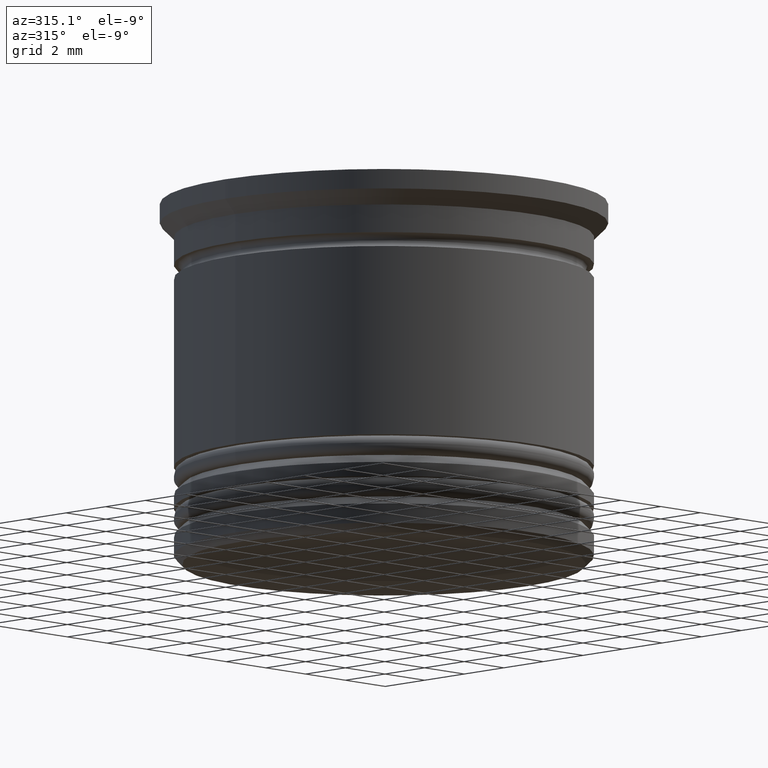
[diagram: clean part render]
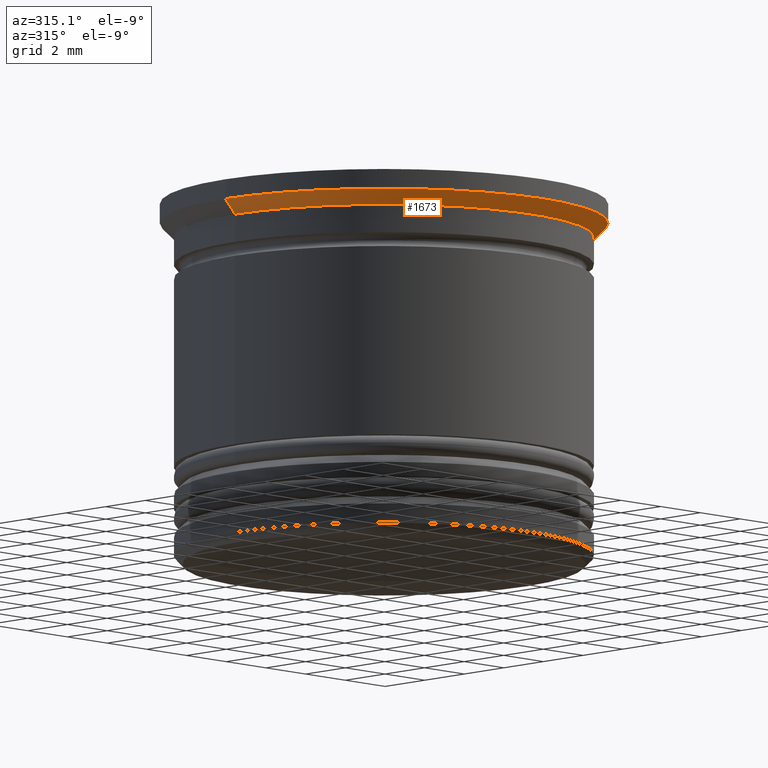
[diagram: same view with one face highlighted and labeled with its STEP entity id]
A machine part, auxiliary view. The second image highlights one B-rep face of the part: STEP entity #1673.
In plain terms, the highlighted conical surface has half-angle 45 deg.
Its self-contained STEP definition (entity closure, byte-faithful):
#14 = AXIS2_PLACEMENT_3D ( 'NONE', #1347, #422, #411 ) ;
#138 = VERTEX_POINT ( 'NONE', #867 ) ;
#160 = EDGE_CURVE ( 'NONE', #729, #1869, #1290, .T. ) ;
#173 = DIRECTION ( 'NONE',  ( -0.7071067811865500152, 8.659560562354963673E-17, 0.7071067811865450192 ) ) ;
#273 = ORIENTED_EDGE ( 'NONE', *, *, #1799, .T. ) ;
#298 = DIRECTION ( 'NONE',  ( 0.7071067811865500152, 0.000000000000000000, 0.7071067811865450192 ) ) ;
#353 = VECTOR ( 'NONE', #298, 1000.000000000000000 ) ;
#411 = DIRECTION ( 'NONE',  ( 1.000000000000000000, 0.000000000000000000, 0.000000000000000000 ) ) ;
#422 = DIRECTION ( 'NONE',  ( -0.000000000000000000, -0.000000000000000000, 1.000000000000000000 ) ) ;
#472 = CARTESIAN_POINT ( 'NONE',  ( -8.000000000000000000, 9.797174393178825657E-16, -0.7000000000000005107 ) ) ;
#498 = DIRECTION ( 'NONE',  ( -1.000000000000000000, 0.000000000000000000, 0.000000000000000000 ) ) ;
#528 = EDGE_CURVE ( 'NONE', #686, #138, #1692, .T. ) ;
#552 = EDGE_CURVE ( 'NONE', #138, #1869, #1980, .T. ) ;
#558 = EDGE_LOOP ( 'NONE', ( #1569, #273, #1346, #1042 ) ) ;
#618 = CARTESIAN_POINT ( 'NONE',  ( 0.000000000000000000, 0.000000000000000000, -0.7000000000000005107 ) ) ;
#628 = DIRECTION ( 'NONE',  ( -0.000000000000000000, -0.000000000000000000, 1.000000000000000000 ) ) ;
#676 = CARTESIAN_POINT ( 'NONE',  ( 7.499999999999998224, 0.000000000000000000, -1.199999999999999289 ) ) ;
#686 = VERTEX_POINT ( 'NONE', #1736 ) ;
#729 = VERTEX_POINT ( 'NONE', #676 ) ;
#793 = DIRECTION ( 'NONE',  ( -0.000000000000000000, -0.000000000000000000, 1.000000000000000000 ) ) ;
#867 = CARTESIAN_POINT ( 'NONE',  ( -8.000000000000000000, 9.797174393178825657E-16, -0.7000000000000005107 ) ) ;
#894 = VECTOR ( 'NONE', #173, 1000.000000000000000 ) ;
#1042 = ORIENTED_EDGE ( 'NONE', *, *, #552, .F. ) ;
#1109 = AXIS2_PLACEMENT_3D ( 'NONE', #618, #793, #498 ) ;
#1177 = CARTESIAN_POINT ( 'NONE',  ( 8.000000000000000000, 0.000000000000000000, -0.7000000000000005107 ) ) ;
#1205 = CARTESIAN_POINT ( 'NONE',  ( 8.000000000000000000, 0.000000000000000000, -0.7000000000000005107 ) ) ;
#1290 = LINE ( 'NONE', #1177, #353 ) ;
#1331 = CONICAL_SURFACE ( 'NONE', #14, 8.000000000000000000, 0.7853981633974518317 ) ;
#1346 = ORIENTED_EDGE ( 'NONE', *, *, #160, .T. ) ;
#1347 = CARTESIAN_POINT ( 'NONE',  ( 0.000000000000000000, 0.000000000000000000, -0.7000000000000005107 ) ) ;
#1355 = CARTESIAN_POINT ( 'NONE',  ( 0.000000000000000000, 0.000000000000000000, -1.199999999999999289 ) ) ;
#1569 = ORIENTED_EDGE ( 'NONE', *, *, #528, .F. ) ;
#1673 = ADVANCED_FACE ( 'NONE', ( #1919 ), #1331, .T. ) ;
#1692 = LINE ( 'NONE', #472, #894 ) ;
#1710 = AXIS2_PLACEMENT_3D ( 'NONE', #1355, #628, #1829 ) ;
#1736 = CARTESIAN_POINT ( 'NONE',  ( -7.499999999999998224, 9.184850993605145972E-16, -1.199999999999999289 ) ) ;
#1799 = EDGE_CURVE ( 'NONE', #686, #729, #1849, .T. ) ;
#1829 = DIRECTION ( 'NONE',  ( 1.000000000000000000, 0.000000000000000000, 0.000000000000000000 ) ) ;
#1849 = CIRCLE ( 'NONE', #1710, 7.499999999999998224 ) ;
#1869 = VERTEX_POINT ( 'NONE', #1205 ) ;
#1919 = FACE_OUTER_BOUND ( 'NONE', #558, .T. ) ;
#1980 = CIRCLE ( 'NONE', #1109, 8.000000000000000000 ) ;